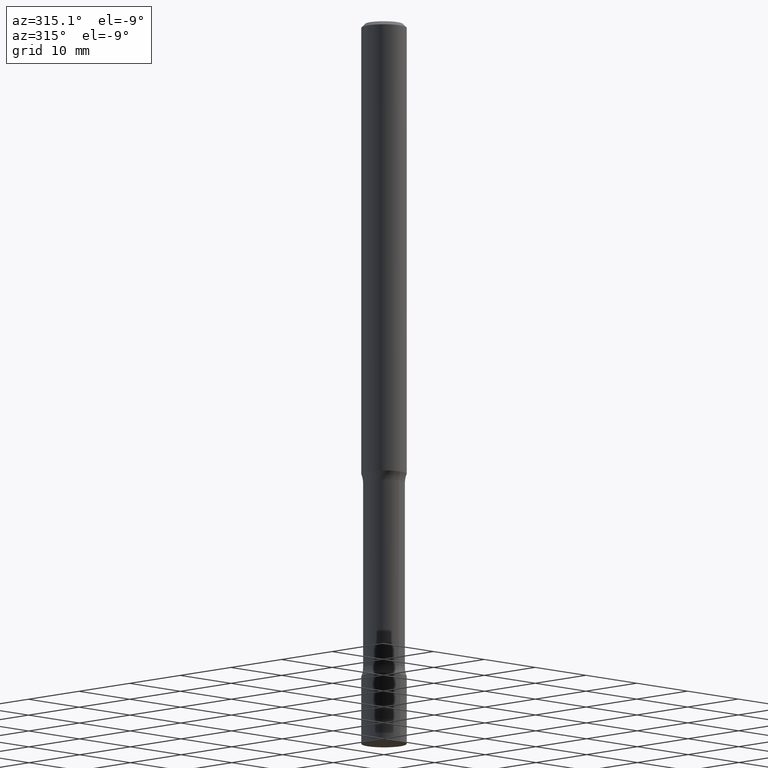
[diagram: clean part render]
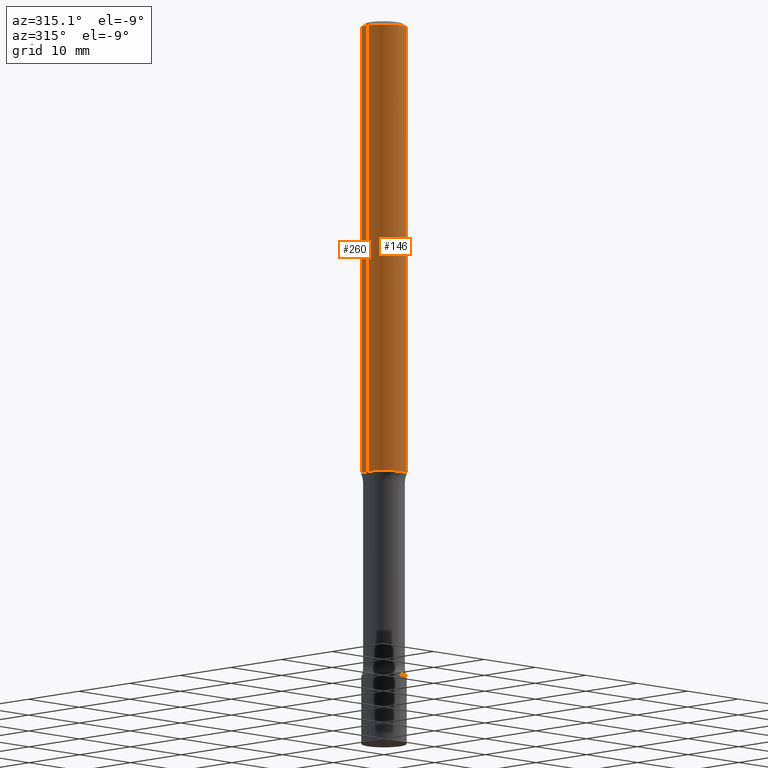
[diagram: same view with one multi-face feature highlighted, each face labeled with its STEP entity id]
A machine part, auxiliary view. The highlighted faces form ONE feature: a constant-radius fillet chain: 2 tangent blend faces with common blend radius 3.175 mm. The faces share edges in the B-rep.
Their STEP definitions:
[1] entity #260 (Cylinder):
#9 = VERTEX_POINT ( 'NONE', #44 ) ;
#30 = AXIS2_PLACEMENT_3D ( 'NONE', #491, #456, #368 ) ;
#31 = EDGE_CURVE ( 'NONE', #301, #361, #309, .T. ) ;
#44 = CARTESIAN_POINT ( 'NONE',  ( 0.1250000000000000000, -9.601573681818646704E-15, -2.499999999999999556 ) ) ;
#52 = ORIENTED_EDGE ( 'NONE', *, *, #121, .F. ) ;
#57 = CARTESIAN_POINT ( 'NONE',  ( -0.1249999999999998473, 8.881784197001241477E-16, -6.148668862818624520E-30 ) ) ;
#59 = DIRECTION ( 'NONE',  ( -2.445468806185136877E-29, 3.491481338843145188E-15, 1.000000000000000000 ) ) ;
#64 = DIRECTION ( 'NONE',  ( 1.000000000000000000, -6.982962677686270655E-15, 0.000000000000000000 ) ) ;
#84 = EDGE_CURVE ( 'NONE', #427, #361, #293, .T. ) ;
#89 = ORIENTED_EDGE ( 'NONE', *, *, #31, .F. ) ;
#112 = CIRCLE ( 'NONE', #502, 0.1250000000000000000 ) ;
#121 = EDGE_CURVE ( 'NONE', #9, #301, #329, .T. ) ;
#130 = CARTESIAN_POINT ( 'NONE',  ( 0.1249999999999998473, -8.728703347107822541E-16, 6.095220969744912034E-30 ) ) ;
#150 = DIRECTION ( 'NONE',  ( -2.445468806185136597E-29, 3.491481338843145583E-15, 1.000000000000000000 ) ) ;
#152 = ORIENTED_EDGE ( 'NONE', *, *, #158, .T. ) ;
#158 = EDGE_CURVE ( 'NONE', #9, #427, #112, .T. ) ;
#184 = CYLINDRICAL_SURFACE ( 'NONE', #475, 0.1249999999999998473 ) ;
#218 = CARTESIAN_POINT ( 'NONE',  ( -0.1250000000000000278, -3.511088067242232183E-15, -2.499999999999999556 ) ) ;
#233 = ORIENTED_EDGE ( 'NONE', *, *, #84, .T. ) ;
#256 = CARTESIAN_POINT ( 'NONE',  ( 6.113672015462840371E-29, -8.728703347107863365E-15, -2.499999999999999556 ) ) ;
#260 = ADVANCED_FACE ( 'NONE', ( #479 ), #184, .T. ) ;
#293 = LINE ( 'NONE', #57, #400 ) ;
#301 = VERTEX_POINT ( 'NONE', #323 ) ;
#308 = EDGE_LOOP ( 'NONE', ( #152, #233, #89, #52 ) ) ;
#309 = CIRCLE ( 'NONE', #30, 0.1249999999999996947 ) ;
#323 = CARTESIAN_POINT ( 'NONE',  ( 0.1249999999999996947, -9.273918764983021797E-16, -0.02000000000000000042 ) ) ;
#329 = LINE ( 'NONE', #130, #493 ) ;
#343 = CARTESIAN_POINT ( 'NONE',  ( 0.000000000000000000, 0.000000000000000000, 0.000000000000000000 ) ) ;
#359 = CARTESIAN_POINT ( 'NONE',  ( -0.1249999999999996947, 8.030407079339181671E-16, -0.02000000000000000042 ) ) ;
#361 = VERTEX_POINT ( 'NONE', #359 ) ;
#368 = DIRECTION ( 'NONE',  ( 1.000000000000000000, -6.982962677686266711E-15, 0.000000000000000000 ) ) ;
#400 = VECTOR ( 'NONE', #59, 39.37007874015748143 ) ;
#418 = DIRECTION ( 'NONE',  ( -2.445468806185136597E-29, 3.491481338843145583E-15, 1.000000000000000000 ) ) ;
#427 = VERTEX_POINT ( 'NONE', #218 ) ;
#456 = DIRECTION ( 'NONE',  ( -2.445468806185136597E-29, 3.491481338843145583E-15, 1.000000000000000000 ) ) ;
#469 = DIRECTION ( 'NONE',  ( 1.000000000000000000, -6.982962677686266711E-15, 4.876176775795935793E-29 ) ) ;
#475 = AXIS2_PLACEMENT_3D ( 'NONE', #343, #150, #469 ) ;
#479 = FACE_OUTER_BOUND ( 'NONE', #308, .T. ) ;
#491 = CARTESIAN_POINT ( 'NONE',  ( 4.890937612370273159E-31, -6.982962677686291609E-17, -0.02000000000000000042 ) ) ;
#493 = VECTOR ( 'NONE', #495, 39.37007874015748143 ) ;
#495 = DIRECTION ( 'NONE',  ( -2.445468806185136877E-29, 3.491481338843145188E-15, 1.000000000000000000 ) ) ;
#502 = AXIS2_PLACEMENT_3D ( 'NONE', #256, #418, #64 ) ;
[2] entity #146 (Cylinder):
#9 = VERTEX_POINT ( 'NONE', #44 ) ;
#25 = DIRECTION ( 'NONE',  ( -2.445468806185136597E-29, 3.491481338843145583E-15, 1.000000000000000000 ) ) ;
#42 = DIRECTION ( 'NONE',  ( 1.000000000000000000, -6.982962677686266711E-15, 0.000000000000000000 ) ) ;
#44 = CARTESIAN_POINT ( 'NONE',  ( 0.1250000000000000000, -9.601573681818646704E-15, -2.499999999999999556 ) ) ;
#47 = AXIS2_PLACEMENT_3D ( 'NONE', #245, #458, #94 ) ;
#57 = CARTESIAN_POINT ( 'NONE',  ( -0.1249999999999998473, 8.881784197001241477E-16, -6.148668862818624520E-30 ) ) ;
#59 = DIRECTION ( 'NONE',  ( -2.445468806185136877E-29, 3.491481338843145188E-15, 1.000000000000000000 ) ) ;
#84 = EDGE_CURVE ( 'NONE', #427, #361, #293, .T. ) ;
#94 = DIRECTION ( 'NONE',  ( 1.000000000000000000, -6.982962677686266711E-15, 4.876176775795935793E-29 ) ) ;
#102 = CARTESIAN_POINT ( 'NONE',  ( 6.113672015462840371E-29, -8.728703347107863365E-15, -2.499999999999999556 ) ) ;
#119 = DIRECTION ( 'NONE',  ( -2.445468806185136597E-29, 3.491481338843145583E-15, 1.000000000000000000 ) ) ;
#121 = EDGE_CURVE ( 'NONE', #9, #301, #329, .T. ) ;
#130 = CARTESIAN_POINT ( 'NONE',  ( 0.1249999999999998473, -8.728703347107822541E-16, 6.095220969744912034E-30 ) ) ;
#138 = CYLINDRICAL_SURFACE ( 'NONE', #47, 0.1249999999999998473 ) ;
#141 = EDGE_CURVE ( 'NONE', #427, #9, #354, .T. ) ;
#146 = ADVANCED_FACE ( 'NONE', ( #497 ), #138, .T. ) ;
#155 = AXIS2_PLACEMENT_3D ( 'NONE', #102, #25, #175 ) ;
#175 = DIRECTION ( 'NONE',  ( 1.000000000000000000, -6.982962677686270655E-15, 0.000000000000000000 ) ) ;
#199 = ORIENTED_EDGE ( 'NONE', *, *, #84, .F. ) ;
#218 = CARTESIAN_POINT ( 'NONE',  ( -0.1250000000000000278, -3.511088067242232183E-15, -2.499999999999999556 ) ) ;
#220 = AXIS2_PLACEMENT_3D ( 'NONE', #347, #119, #42 ) ;
#223 = EDGE_CURVE ( 'NONE', #361, #301, #326, .T. ) ;
#242 = ORIENTED_EDGE ( 'NONE', *, *, #223, .F. ) ;
#245 = CARTESIAN_POINT ( 'NONE',  ( 0.000000000000000000, 0.000000000000000000, 0.000000000000000000 ) ) ;
#293 = LINE ( 'NONE', #57, #400 ) ;
#301 = VERTEX_POINT ( 'NONE', #323 ) ;
#323 = CARTESIAN_POINT ( 'NONE',  ( 0.1249999999999996947, -9.273918764983021797E-16, -0.02000000000000000042 ) ) ;
#326 = CIRCLE ( 'NONE', #220, 0.1249999999999996947 ) ;
#329 = LINE ( 'NONE', #130, #493 ) ;
#347 = CARTESIAN_POINT ( 'NONE',  ( 4.890937612370273159E-31, -6.982962677686291609E-17, -0.02000000000000000042 ) ) ;
#354 = CIRCLE ( 'NONE', #155, 0.1250000000000000000 ) ;
#359 = CARTESIAN_POINT ( 'NONE',  ( -0.1249999999999996947, 8.030407079339181671E-16, -0.02000000000000000042 ) ) ;
#361 = VERTEX_POINT ( 'NONE', #359 ) ;
#400 = VECTOR ( 'NONE', #59, 39.37007874015748143 ) ;
#427 = VERTEX_POINT ( 'NONE', #218 ) ;
#437 = ORIENTED_EDGE ( 'NONE', *, *, #141, .T. ) ;
#458 = DIRECTION ( 'NONE',  ( -2.445468806185136597E-29, 3.491481338843145583E-15, 1.000000000000000000 ) ) ;
#464 = EDGE_LOOP ( 'NONE', ( #199, #437, #471, #242 ) ) ;
#471 = ORIENTED_EDGE ( 'NONE', *, *, #121, .T. ) ;
#493 = VECTOR ( 'NONE', #495, 39.37007874015748143 ) ;
#495 = DIRECTION ( 'NONE',  ( -2.445468806185136877E-29, 3.491481338843145188E-15, 1.000000000000000000 ) ) ;
#497 = FACE_OUTER_BOUND ( 'NONE', #464, .T. ) ;